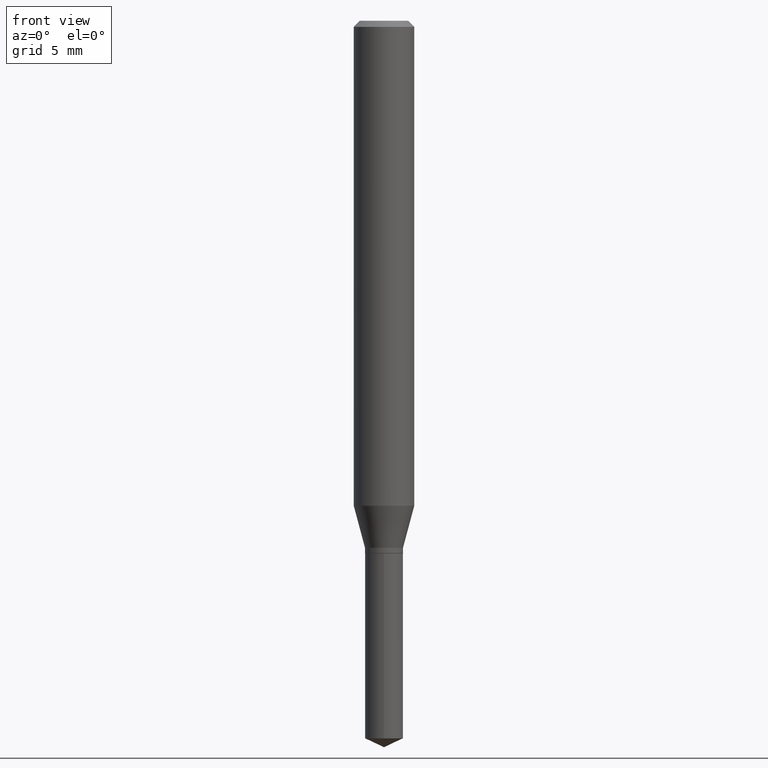
[diagram: clean part render]
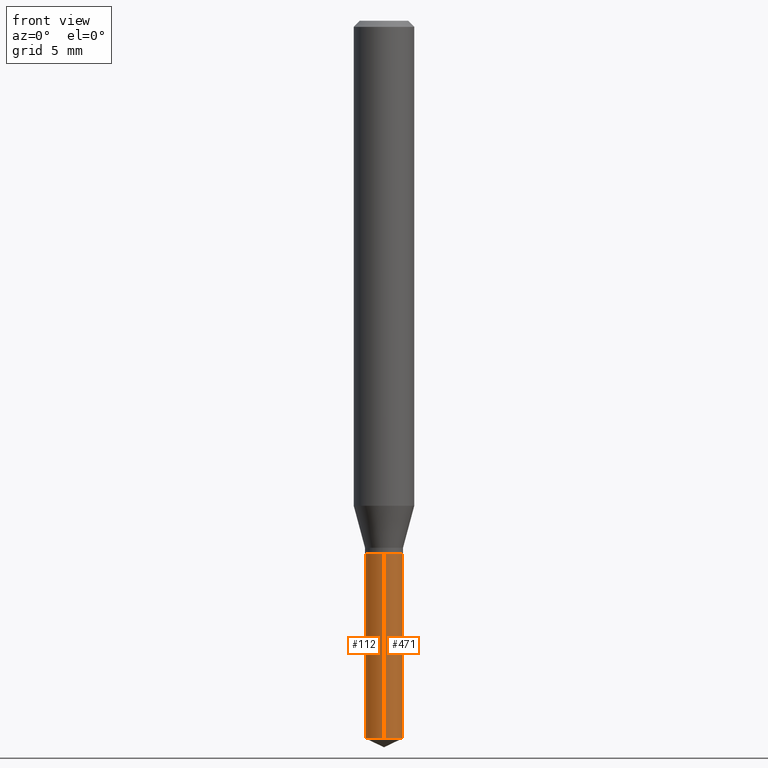
[diagram: same view with one multi-face feature highlighted, each face labeled with its STEP entity id]
A machine part, front view. The highlighted faces form ONE feature: a constant-radius fillet chain: 2 tangent blend faces with common blend radius 0.997 mm. The faces share edges in the B-rep.
Their STEP definitions:
[1] entity #471 (Cylinder):
#7 = DIRECTION ( 'NONE',  ( -6.982962677686264344E-15, -1.000000000000000000, 3.480061138425812861E-15 ) ) ;
#21 = AXIS2_PLACEMENT_3D ( 'NONE', #113, #188, #7 ) ;
#58 = VERTEX_POINT ( 'NONE', #221 ) ;
#84 = EDGE_CURVE ( 'NONE', #58, #206, #448, .T. ) ;
#94 = DIRECTION ( 'NONE',  ( -6.982962677686264344E-15, -1.000000000000000000, 3.480061138425812861E-15 ) ) ;
#98 = ORIENTED_EDGE ( 'NONE', *, *, #486, .F. ) ;
#113 = CARTESIAN_POINT ( 'NONE',  ( 2.690015686803650369E-29, -3.840629472727460101E-15, -1.100000000000000089 ) ) ;
#125 = VECTOR ( 'NONE', #261, 39.37007874015748143 ) ;
#166 = DIRECTION ( 'NONE',  ( -6.982962677686264344E-15, -1.000000000000000000, 6.960122276851625723E-15 ) ) ;
#188 = DIRECTION ( 'NONE',  ( -2.445399690415121530E-29, 3.491580316559632610E-15, 1.000000000000000000 ) ) ;
#206 = VERTEX_POINT ( 'NONE', #302 ) ;
#214 = LINE ( 'NONE', #480, #387 ) ;
#218 = CARTESIAN_POINT ( 'NONE',  ( -2.740812850991590012E-16, -0.03925000000000383737, -1.099999999999999867 ) ) ;
#221 = CARTESIAN_POINT ( 'NONE',  ( -2.740812850991590012E-16, -0.03925000000000383737, -1.099999999999999867 ) ) ;
#223 = AXIS2_PLACEMENT_3D ( 'NONE', #281, #436, #94 ) ;
#228 = LINE ( 'NONE', #218, #125 ) ;
#248 = DIRECTION ( 'NONE',  ( -2.445399690415121810E-29, 3.491580316559632610E-15, 1.000000000000000000 ) ) ;
#250 = CYLINDRICAL_SURFACE ( 'NONE', #223, 0.03925000000000000017 ) ;
#261 = DIRECTION ( 'NONE',  ( -2.445399690415121810E-29, 3.491580316559632610E-15, 1.000000000000000000 ) ) ;
#271 = CARTESIAN_POINT ( 'NONE',  ( 3.623418450306251076E-29, -5.173356686704819845E-15, -1.481697424417416808 ) ) ;
#277 = EDGE_CURVE ( 'NONE', #426, #404, #357, .T. ) ;
#281 = CARTESIAN_POINT ( 'NONE',  ( 2.690015686803650369E-29, -3.840629472727460101E-15, -1.100000000000000089 ) ) ;
#301 = ORIENTED_EDGE ( 'NONE', *, *, #84, .F. ) ;
#302 = CARTESIAN_POINT ( 'NONE',  ( 2.788880237858755131E-16, 0.03924999999999615602, -1.100000000000000089 ) ) ;
#316 = CARTESIAN_POINT ( 'NONE',  ( -2.740812850991497321E-16, -0.03925000000000516270, -1.481697424417416808 ) ) ;
#331 = EDGE_LOOP ( 'NONE', ( #476, #384, #301, #98 ) ) ;
#341 = EDGE_CURVE ( 'NONE', #404, #206, #214, .T. ) ;
#357 = CIRCLE ( 'NONE', #425, 0.03925000000000000017 ) ;
#384 = ORIENTED_EDGE ( 'NONE', *, *, #341, .T. ) ;
#387 = VECTOR ( 'NONE', #248, 39.37007874015748143 ) ;
#388 = DIRECTION ( 'NONE',  ( -2.445399690415121530E-29, 3.491580316559632610E-15, 1.000000000000000000 ) ) ;
#404 = VERTEX_POINT ( 'NONE', #432 ) ;
#425 = AXIS2_PLACEMENT_3D ( 'NONE', #271, #388, #166 ) ;
#426 = VERTEX_POINT ( 'NONE', #316 ) ;
#432 = CARTESIAN_POINT ( 'NONE',  ( 2.788880237858754638E-16, 0.03924999999999482375, -1.481697424417416808 ) ) ;
#436 = DIRECTION ( 'NONE',  ( -2.445399690415121530E-29, 3.491580316559632610E-15, 1.000000000000000000 ) ) ;
#441 = FACE_OUTER_BOUND ( 'NONE', #331, .T. ) ;
#448 = CIRCLE ( 'NONE', #21, 0.03925000000000000017 ) ;
#471 = ADVANCED_FACE ( 'NONE', ( #441 ), #250, .T. ) ;
#476 = ORIENTED_EDGE ( 'NONE', *, *, #277, .T. ) ;
#480 = CARTESIAN_POINT ( 'NONE',  ( 2.788880237858660961E-16, 0.03924999999999615602, -1.100000000000000089 ) ) ;
#486 = EDGE_CURVE ( 'NONE', #426, #58, #228, .T. ) ;
[2] entity #112 (Cylinder):
#4 = DIRECTION ( 'NONE',  ( -2.445399690415121530E-29, 3.491580316559632610E-15, 1.000000000000000000 ) ) ;
#33 = ORIENTED_EDGE ( 'NONE', *, *, #117, .T. ) ;
#58 = VERTEX_POINT ( 'NONE', #221 ) ;
#104 = EDGE_CURVE ( 'NONE', #206, #58, #418, .T. ) ;
#108 = CARTESIAN_POINT ( 'NONE',  ( 2.690015686803650369E-29, -3.840629472727460101E-15, -1.100000000000000089 ) ) ;
#109 = DIRECTION ( 'NONE',  ( -6.982962677686264344E-15, -1.000000000000000000, 6.960122276851625723E-15 ) ) ;
#112 = ADVANCED_FACE ( 'NONE', ( #414 ), #296, .T. ) ;
#117 = EDGE_CURVE ( 'NONE', #404, #426, #247, .T. ) ;
#125 = VECTOR ( 'NONE', #261, 39.37007874015748143 ) ;
#150 = CARTESIAN_POINT ( 'NONE',  ( 3.623418450306251076E-29, -5.173356686704819845E-15, -1.481697424417416808 ) ) ;
#189 = AXIS2_PLACEMENT_3D ( 'NONE', #150, #340, #109 ) ;
#202 = AXIS2_PLACEMENT_3D ( 'NONE', #338, #4, #456 ) ;
#206 = VERTEX_POINT ( 'NONE', #302 ) ;
#214 = LINE ( 'NONE', #480, #387 ) ;
#218 = CARTESIAN_POINT ( 'NONE',  ( -2.740812850991590012E-16, -0.03925000000000383737, -1.099999999999999867 ) ) ;
#221 = CARTESIAN_POINT ( 'NONE',  ( -2.740812850991590012E-16, -0.03925000000000383737, -1.099999999999999867 ) ) ;
#228 = LINE ( 'NONE', #218, #125 ) ;
#236 = ORIENTED_EDGE ( 'NONE', *, *, #341, .F. ) ;
#247 = CIRCLE ( 'NONE', #189, 0.03925000000000000017 ) ;
#248 = DIRECTION ( 'NONE',  ( -2.445399690415121810E-29, 3.491580316559632610E-15, 1.000000000000000000 ) ) ;
#261 = DIRECTION ( 'NONE',  ( -2.445399690415121810E-29, 3.491580316559632610E-15, 1.000000000000000000 ) ) ;
#262 = DIRECTION ( 'NONE',  ( -2.445399690415121530E-29, 3.491580316559632610E-15, 1.000000000000000000 ) ) ;
#270 = EDGE_LOOP ( 'NONE', ( #236, #33, #329, #461 ) ) ;
#296 = CYLINDRICAL_SURFACE ( 'NONE', #202, 0.03925000000000000017 ) ;
#302 = CARTESIAN_POINT ( 'NONE',  ( 2.788880237858755131E-16, 0.03924999999999615602, -1.100000000000000089 ) ) ;
#316 = CARTESIAN_POINT ( 'NONE',  ( -2.740812850991497321E-16, -0.03925000000000516270, -1.481697424417416808 ) ) ;
#329 = ORIENTED_EDGE ( 'NONE', *, *, #486, .T. ) ;
#338 = CARTESIAN_POINT ( 'NONE',  ( 2.690015686803650369E-29, -3.840629472727460101E-15, -1.100000000000000089 ) ) ;
#340 = DIRECTION ( 'NONE',  ( -2.445399690415121530E-29, 3.491580316559632610E-15, 1.000000000000000000 ) ) ;
#341 = EDGE_CURVE ( 'NONE', #404, #206, #214, .T. ) ;
#387 = VECTOR ( 'NONE', #248, 39.37007874015748143 ) ;
#400 = AXIS2_PLACEMENT_3D ( 'NONE', #108, #262, #459 ) ;
#404 = VERTEX_POINT ( 'NONE', #432 ) ;
#414 = FACE_OUTER_BOUND ( 'NONE', #270, .T. ) ;
#418 = CIRCLE ( 'NONE', #400, 0.03925000000000000017 ) ;
#426 = VERTEX_POINT ( 'NONE', #316 ) ;
#432 = CARTESIAN_POINT ( 'NONE',  ( 2.788880237858754638E-16, 0.03924999999999482375, -1.481697424417416808 ) ) ;
#456 = DIRECTION ( 'NONE',  ( -6.982962677686264344E-15, -1.000000000000000000, 3.480061138425812861E-15 ) ) ;
#459 = DIRECTION ( 'NONE',  ( -6.982962677686264344E-15, -1.000000000000000000, 3.480061138425812861E-15 ) ) ;
#461 = ORIENTED_EDGE ( 'NONE', *, *, #104, .F. ) ;
#480 = CARTESIAN_POINT ( 'NONE',  ( 2.788880237858660961E-16, 0.03924999999999615602, -1.100000000000000089 ) ) ;
#486 = EDGE_CURVE ( 'NONE', #426, #58, #228, .T. ) ;